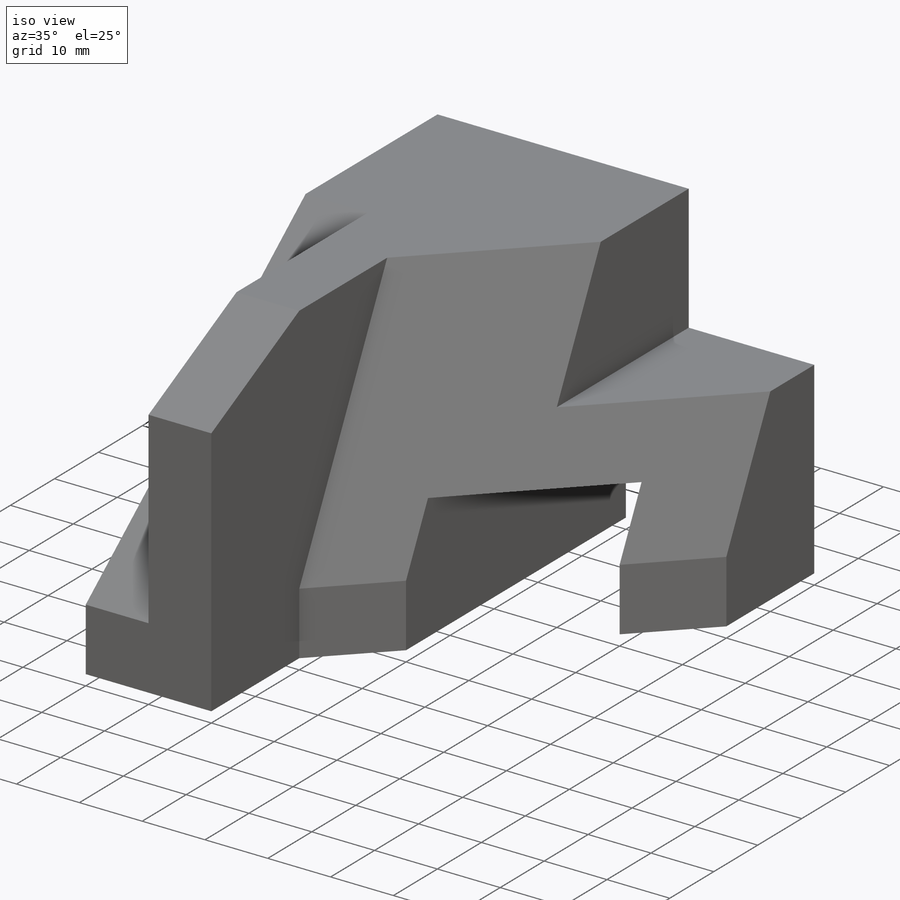
[diagram: iso view]
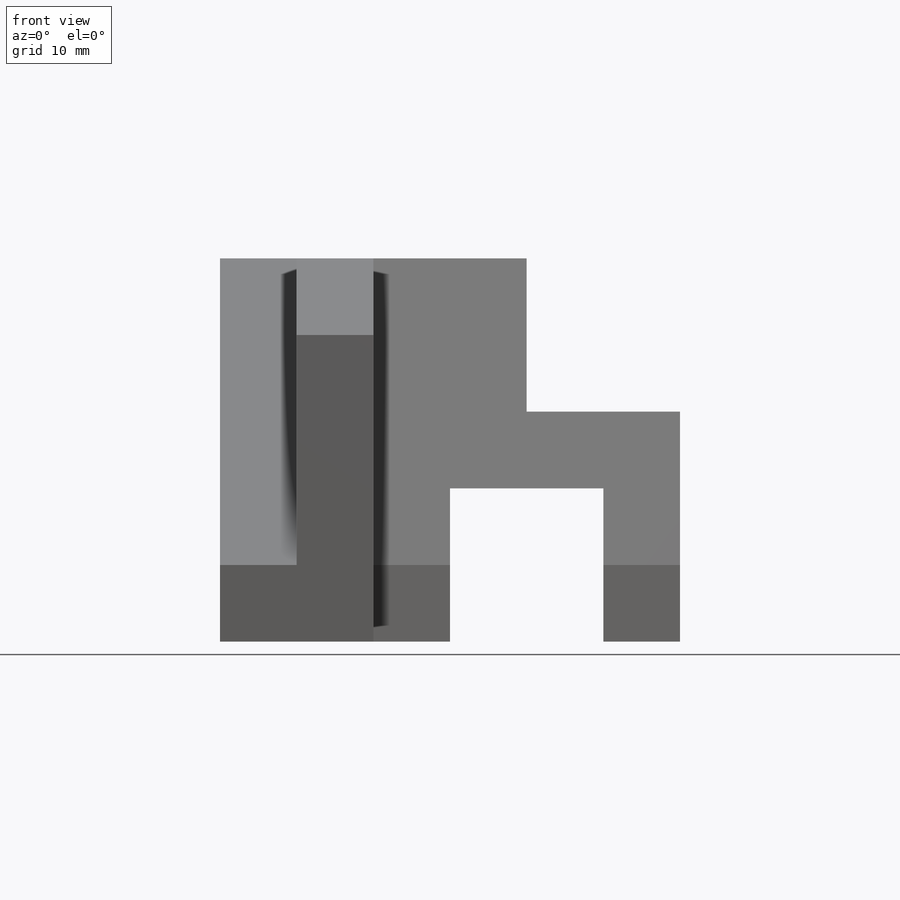
[diagram: front view]
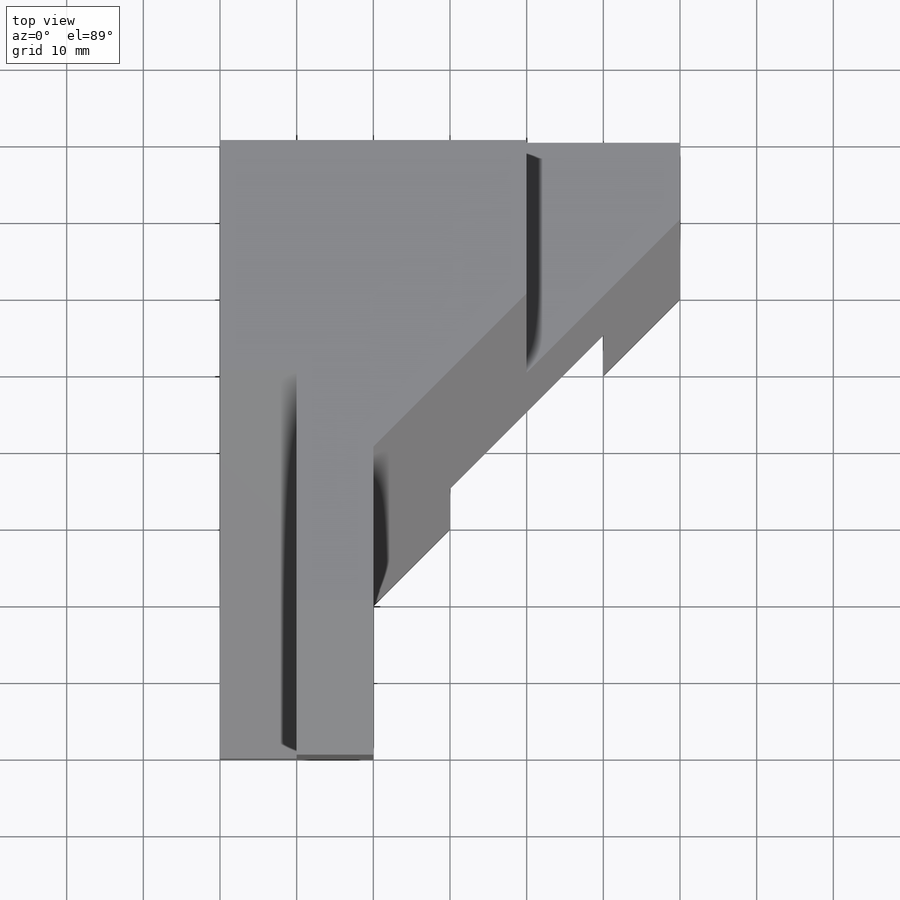
[diagram: top view]
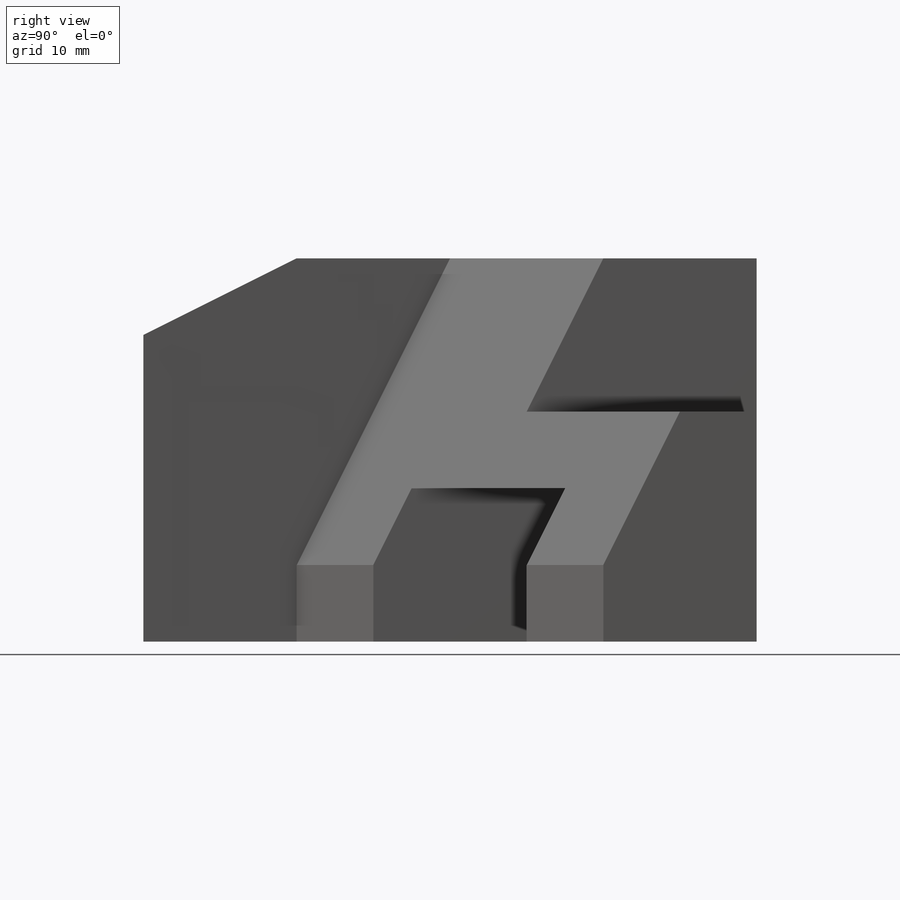
[diagram: right view]
SOLIDWORKS PART (.sldprt)
format: sldprt  version: not decoded by parser v0  size: 303,104 bytes
history: native  units: mm
features: sketch x14, cut_extrude x6, chamfer x2, material x1, extrude x1, plane x1 (+13 scaffold rows collapsed)
feature tree (38):
  scaffold x13  (default folders/planes/origin — collapsed)
  material  "Material <not specified>"
  sketch  "Sketch2"  dims[D1=60.0mm 5=50.0mm]
  extrude  "Boss-Extrude1"  Depth=80mm
  sketch  "Sketch3"  dims[D1=20.0mm D2=20.0mm]
  cut_extrude  "Cut-Extrude1"  Depth=80mm
  sketch  "Sketch4"  dims[D1=20.0mm D2=10.0mm D3=20.0mm]
  cut_extrude  "Cut-Extrude2"  Depth=80mm
  sketch  "Sketch6"  dims[D1=50.0mm D2=40.0mm]
  cut_extrude  "Cut-Extrude3"  Depth=10mm
  sketch  "Sketch7"  dims[D1=10.0mm]
  cut_extrude  "Cut-Extrude4"  Depth=20mm
  plane  "Plane1"
  chamfer  "Chamfer1"  Distance=20mm
  sketch  "Sketch9"  dims[D1=10.0mm]
  chamfer  "Chamfer2"  Distance=40mm
  sketch  "Sketch10"  dims[1=10.0mm D1=10.0mm]
  sketch  "Sketch11"  dims[D1=30.0mm]
  sketch  "Sketch12"  dims[D1=20.0mm]
  sketch  "Sketch13"  dims[D1=40.0mm D2=20.0mm]
  sketch  "Sketch14"  dims[D1=~10.003279mm]
  sketch  "Sketch15"  dims[D1=5.0mm D2=5.0mm]
  sketch  "3DSketch2"
  sketch  "Sketch16"
  cut_extrude  "Cut-Extrude7"  Depth=20mm
  cut_extrude  "Cut-Extrude8"  Depth=20mm
decode coverage: 21 of 23 modeling features carry decoded parameters
note: ~ marks probable driven/reference dimensions
note: suppression state not decoded; provenance and decode notes live in map.json
